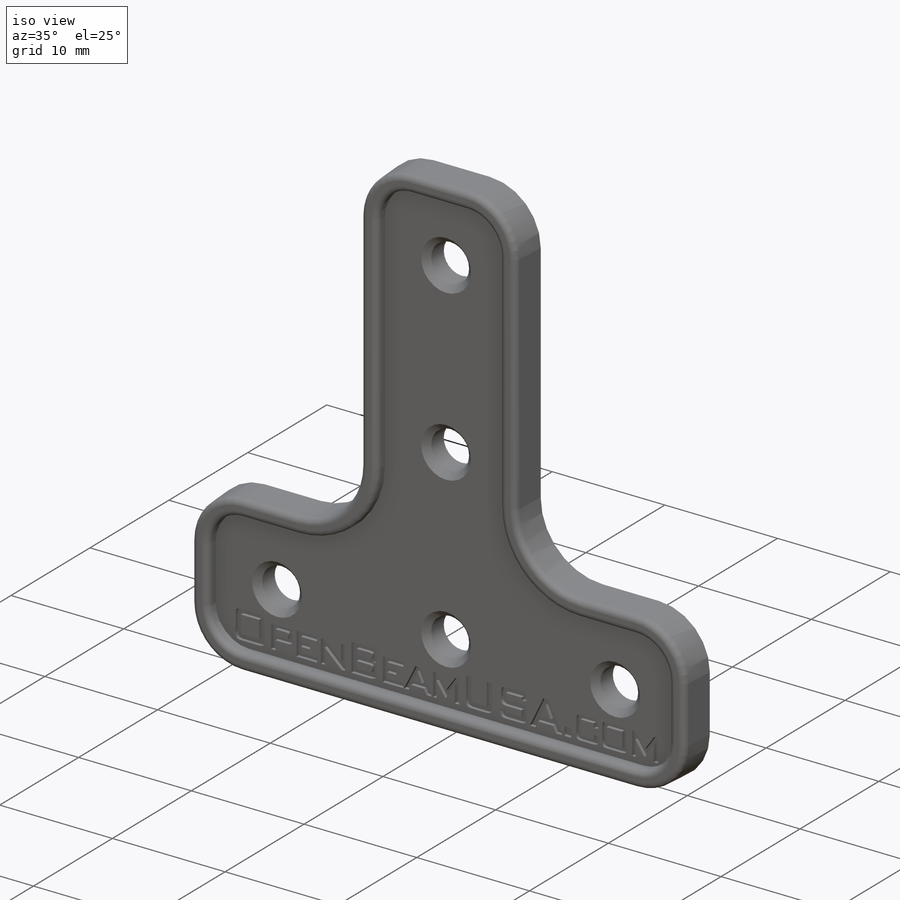
[diagram: iso view]
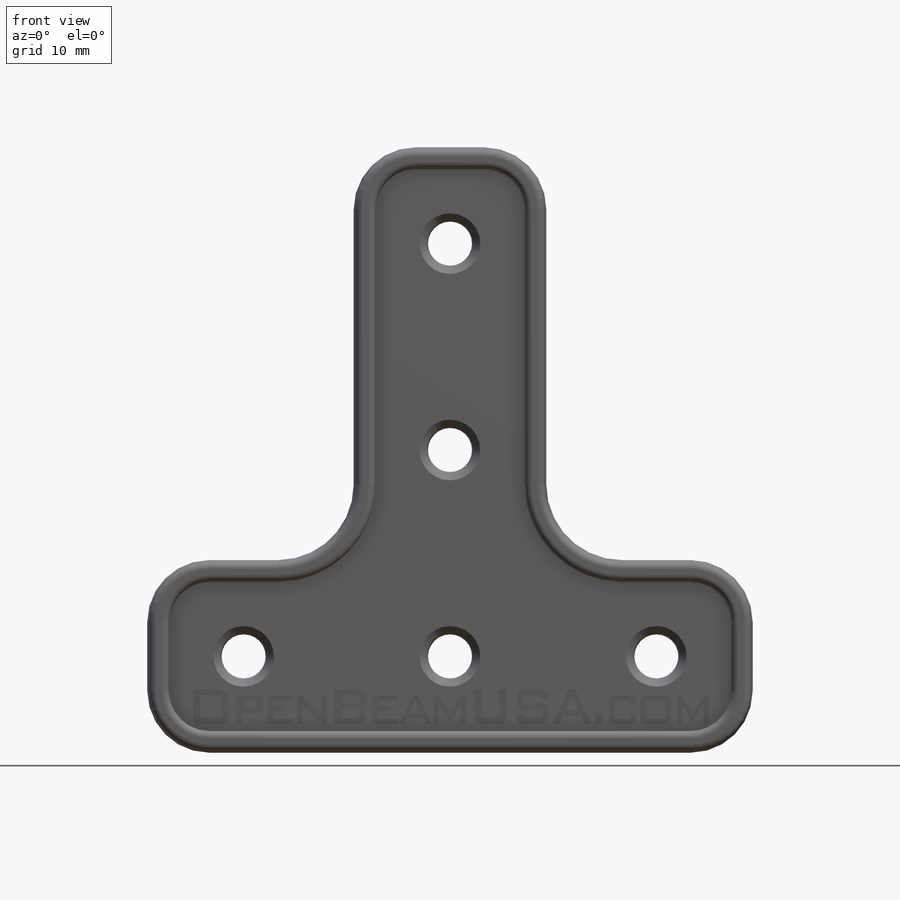
[diagram: front view]
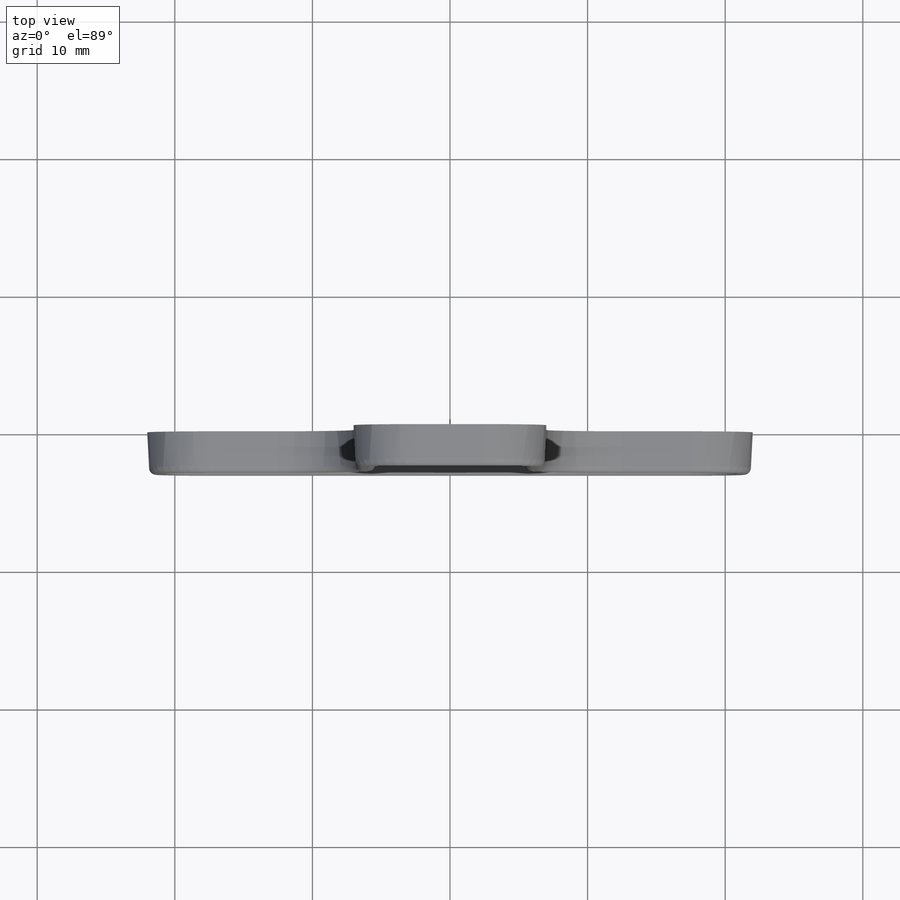
[diagram: top view]
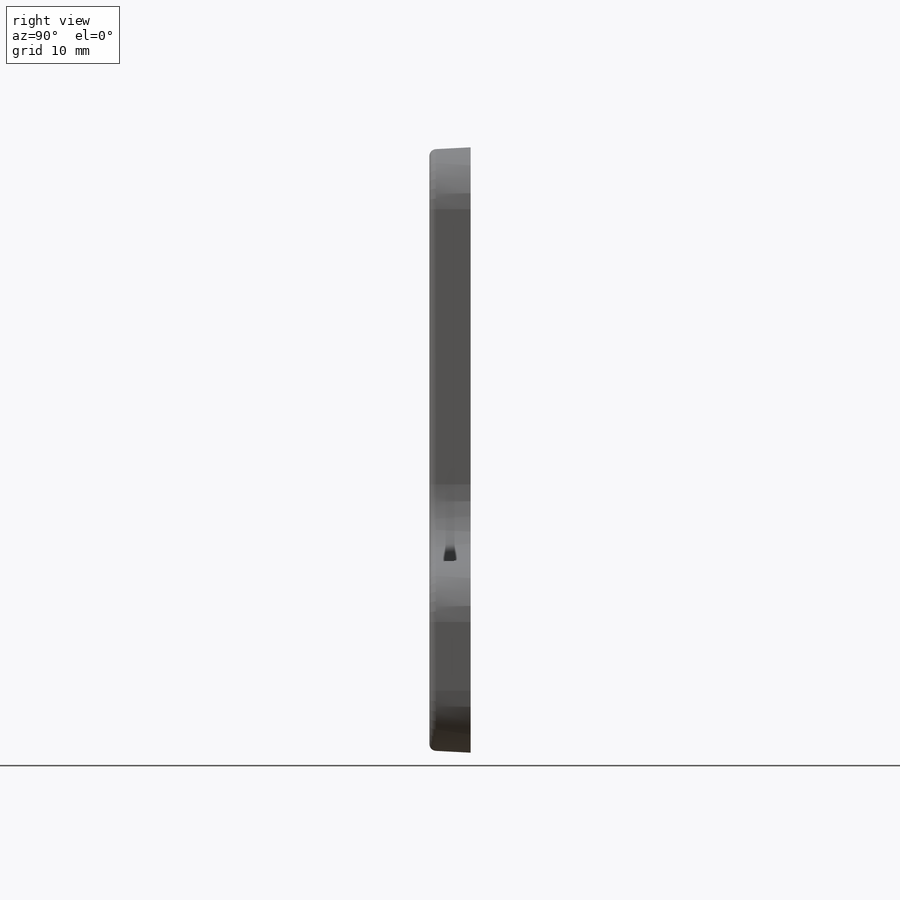
[diagram: right view]
SOLIDWORKS PART (.sldprt)
format: sldprt  version: not decoded by parser v0  size: 1,034,240 bytes
history: native  units: mm
features: sketch x6, cut_extrude x3, extrude x2, fillet x2, material x1, chamfer x1 (+11 scaffold rows collapsed)
feature tree (26):
  scaffold x11  (default folders/planes/origin — collapsed)
  material  "Material <not specified>"
  sketch  "Sketch1"  dims[D1=15.0mm D2=45.0mm D3=45.0mm]
  extrude  "Boss-Extrude1"  Depth=2mm
  fillet  "Fillet1"  Radius=5mm
  sketch  "Sketch2"  dims[D1=3.2mm D2=15.0mm D3=15.0mm D4=15.0mm D5=15.0mm]
  cut_extrude  "Cut-Extrude1"  Depth=0.5mm
  sketch  "Sketch4"  dims[D1=0.0mm D2=1.5mm]
  extrude  "Boss-Extrude3"  Depth=1mm
  fillet  "Fillet3"  Radius=0.5mm
  sketch  "Sketch5"  dims[D4=0.5mm D1=30.0mm D2=4.0mm D3=0.7mm]
  cut_extrude  "Cut-Extrude2"  Depth=0.2mm
  sketch  "Sketch6"  dims[D1=0.5mm]
  cut_extrude  "Cut-Extrude3"  Depth=0.3mm
  sketch  "Sketch7"
  chamfer  "Chamfer1"  Distance=0.5mm Angle=45deg
decode coverage: 13 of 14 modeling features carry decoded parameters
note: suppression state not decoded; provenance and decode notes live in map.json
